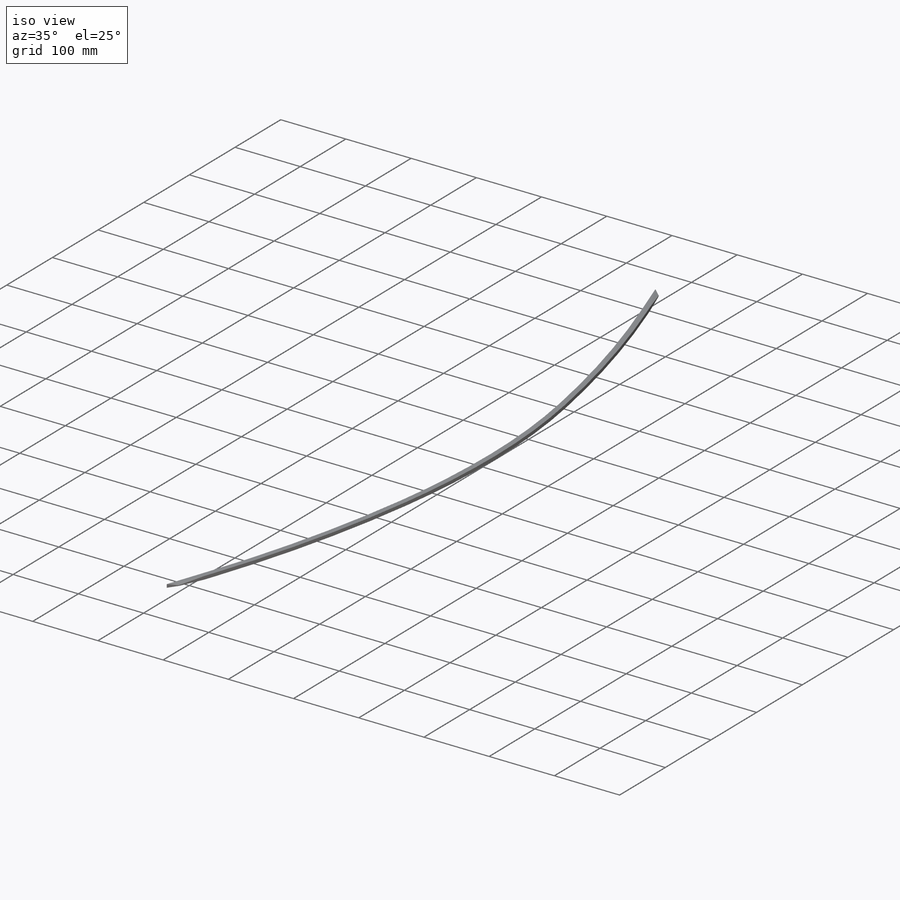
[diagram: iso view]
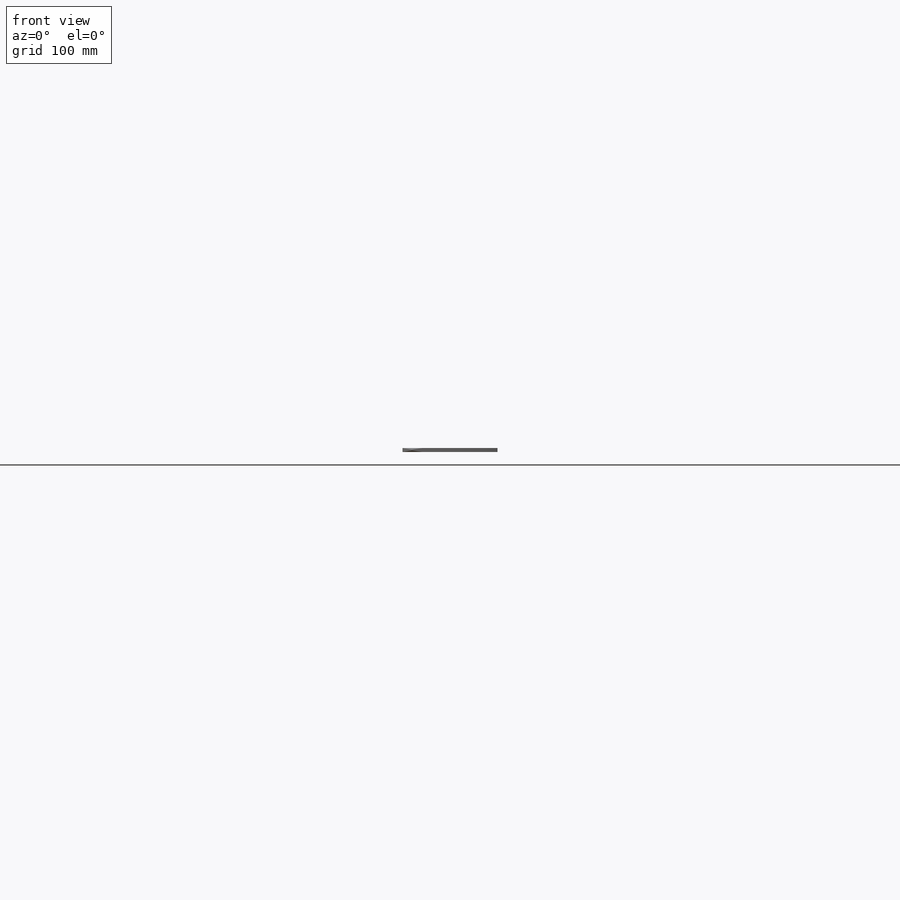
[diagram: front view]
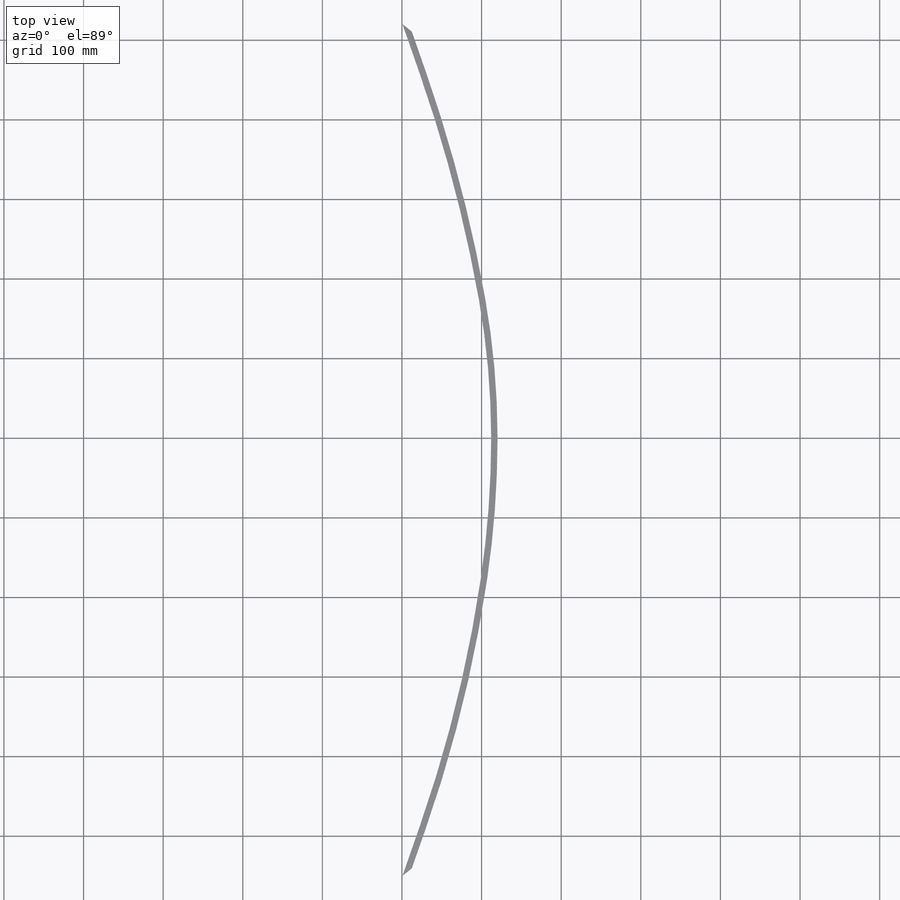
[diagram: top view]
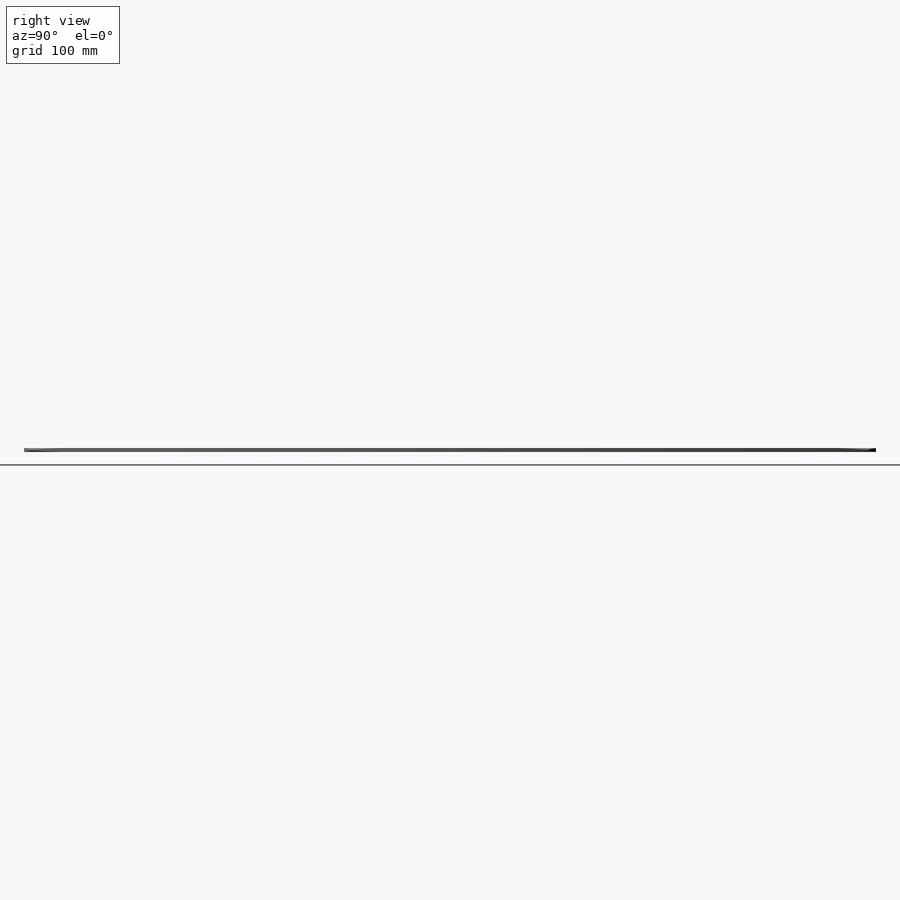
[diagram: right view]
SOLIDWORKS PART (.sldprt)
format: sldprt  version: not decoded by parser v0  size: 217,600 bytes
history: native  units: mm
features: chamfer x4, material x1, sketch x1, extrude x1 (+12 scaffold rows collapsed)
feature tree (19):
  scaffold x12  (default folders/planes/origin — collapsed)
  material  "Material <not specified>"
  sketch  "Sketch1"  dims[c1.D6=1000.0mm c1.D7=~1415.548283mm c2.D6=2000.0mm c2.D8=~1847.304454mm c2.D9=~1036.179092mm c2.D14=~743.449568mm c2.D15=~826.826367mm c3.D14=1000.0mm c3.D1=50.0mm c3.D2=50.0mm c4.D1=56.0mm c4.D2=150.0mm c4.D3=320.0mm c4.D4=490.0mm c4.D5=460.0mm c4.D6=~60.99319mm c5.D6=60.0deg c5.D7=~59.260918mm c6.D7=76.0deg c6.D6=~303.685568mm c7.D6=30.0deg c7.D8=243.0mm c8.D8=30.0deg c8.D10=~24.292458mm c9.D10=30.0deg c9.D11=~62.505717mm c10.D11=30.0deg c10.D10=15.0mm c10.D2=6.0mm c10.D4=60.0mm c10.D5=60.0mm c11.D11=49.0mm c11.D12=170.0mm c11.D13=335.6468mm c11.D7=460.0mm c12.D13=490.0mm c12.D2=12.0mm c12.D10=15.0mm c12.D12=170.0mm c12.D15=150.0mm c12.D9=8.0mm]
  extrude  "Extrude1"  Depth=5mm
  chamfer  "Chamfer1"  Distance=15mm
  chamfer  "Chamfer2"  Distance=2mm
  chamfer  "Chamfer3"  Distance=40mm
  chamfer  "Chamfer4"  Distance=2mm
decode coverage: 6 of 6 modeling features carry decoded parameters
note: ~ marks probable driven/reference dimensions
note: suppression state not decoded; provenance and decode notes live in map.json
